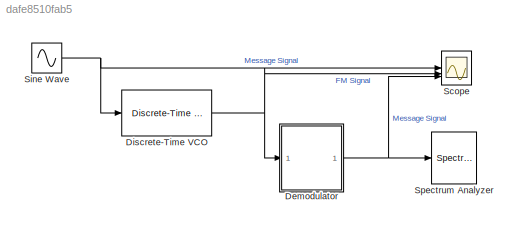
MODEL slx_dafe8510fab5
KIND model
CONFIG AbsTol = auto
CONFIG EnableMultiTasking = off
CONFIG FixedStep = auto
CONFIG MaxStep = auto
CONFIG MinStep = auto
CONFIG RelTol = 1e-3
CONFIG SampleTimeConstraint = Unconstrained
CONFIG SolverName = VariableStepAuto
CONFIG StartTime = 0.0
CONFIG StopTime = 10.0
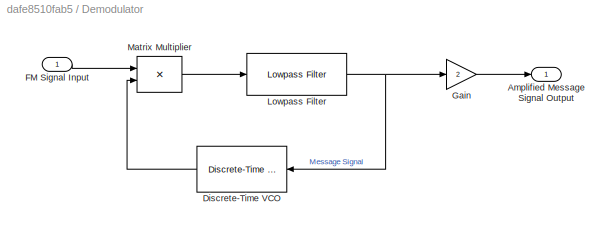
BLOCK [SubSystem] Demodulator
BLOCK [Outport] Demodulator/Amplified Message Signal Output
BLOCK [Reference] Demodulator/Discrete-Time VCO  REF=commsynccomp2/Discrete-Time
VCO
  SourceBlock = commsynccomp2/Discrete-Time\nVCO
  SourceType = Discrete-Time VCO
BLOCK [Inport] Demodulator/FM Signal Input
BLOCK [Gain] Demodulator/Gain
  Gain = 2
BLOCK [Reference] Demodulator/Lowpass Filter  REF=dspfdesign/Lowpass Filter
  SourceBlock = dspfdesign/Lowpass Filter
  SourceType = dsp.simulink.LowpassFilter
BLOCK [Product] Demodulator/Matrix Multiplier
  Multiplication = Matrix(*)
BLOCK [Reference] Discrete-Time VCO  REF=commsynccomp2/Discrete-Time
VCO
  SourceBlock = commsynccomp2/Discrete-Time\nVCO
  SourceType = Discrete-Time VCO
BLOCK [Scope] Scope
  Floating = off
  NumInputPorts = 3
  ScopeSpecificationString = Simulink.scopes.TimeScopeBlockCfg('CurrentConfiguration', extmgr.ConfigurationSet(extmgr.Configuration('Core','General UI',true),extmgr.Configuration('Core','Source UI',true),extmgr.Configuration('Sources','WiredSimulink',true),extmgr.Configuration('Visuals','Time Domain',true,'SerializedDisplays',{struct('MinYLimReal','-2.25','MaxYLimReal','2.25','YLabelReal','','MinYLimMag','0.00000','MaxYLimMag...<+1540ch>
BLOCK [Sin] Sine Wave
  Frequency = 12566.370614
  SampleTime = 0.00001
BLOCK [SpectrumAnalyzer] Spectrum Analyzer
  ScopeSpecificationString = spbscopes.SpectrumAnalyzerBlockCfg('CurrentConfiguration', extmgr.ConfigurationSet(extmgr.Configuration('Core','General UI',true),extmgr.Configuration('Core','Source UI',true),extmgr.Configuration('Sources','WiredSimulink',true),extmgr.Configuration('Sources','Simulink',false),extmgr.Configuration('Sources','File',false),extmgr.Configuration('Sources','Workspace',false),extmgr.Configuration('Sourc...<+3221ch>
LINE Demodulator/Discrete-Time VCO:1 -> Demodulator/Matrix Multiplier:2
LINE Demodulator/FM Signal Input:1 -> Demodulator/Matrix Multiplier:1
LINE Demodulator/Gain:1 -> Demodulator/Amplified Message Signal Output:1
NET Demodulator/Lowpass Filter:1 -> Demodulator/Discrete-Time VCO:1, Demodulator/Gain:1
LINE Demodulator/Matrix Multiplier:1 -> Demodulator/Lowpass Filter:1
NET Demodulator:1 -> Scope:3, Spectrum Analyzer:1
NET Discrete-Time VCO:1 -> Demodulator:1, Scope:2
NET Sine Wave:1 -> Discrete-Time VCO:1, Scope:1
note: NET lines group one-source signal fan-out (src -> all destinations, sorted); 1:1 wires keep LINE
